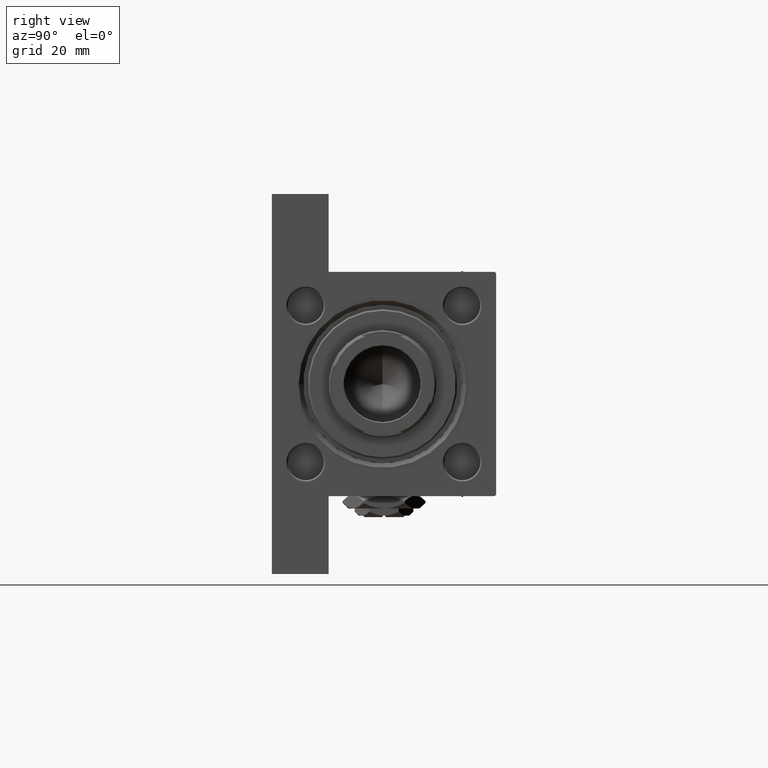
[diagram: clean part render]
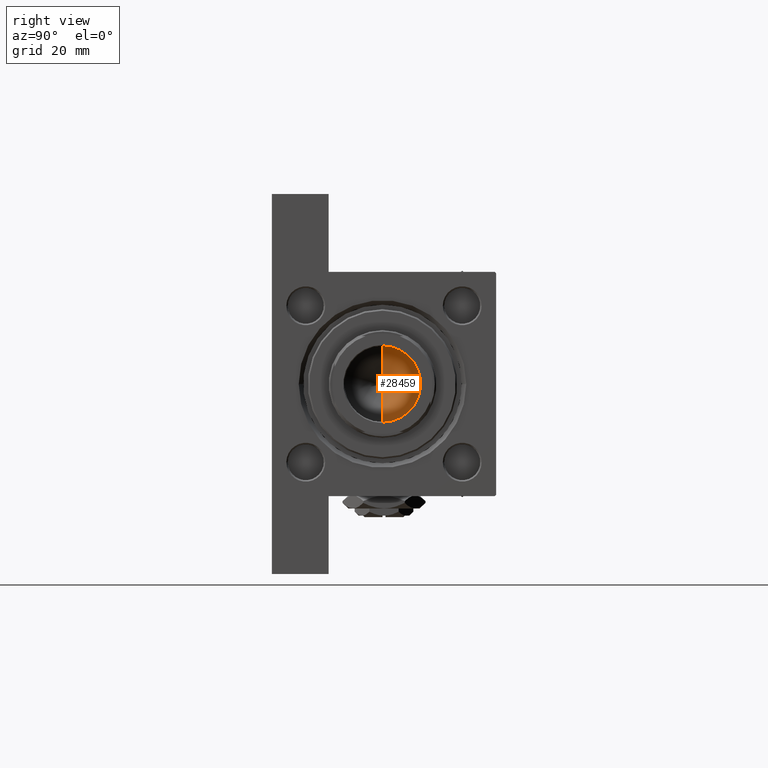
[diagram: same view with one face highlighted and labeled with its STEP entity id]
A machine part, right view. The second image highlights one B-rep face of the part: STEP entity #28459.
In plain terms, the highlighted conical surface has half-angle 59 deg.
Its self-contained STEP definition (entity closure, byte-faithful):
#1206 = DIRECTION ( 'NONE',  ( -0.000000000000000000, -0.000000000000000000, 1.000000000000000000 ) ) ;
#4295 = EDGE_LOOP ( 'NONE', ( #45368, #39631, #15118 ) ) ;
#5500 = EDGE_CURVE ( 'NONE', #44459, #21757, #23090, .T. ) ;
#7320 = DIRECTION ( 'NONE',  ( 1.000000000000000000, 0.000000000000000000, 0.000000000000000000 ) ) ;
#12103 = CIRCLE ( 'NONE', #18516, 12.74999999999998934 ) ;
#15118 = ORIENTED_EDGE ( 'NONE', *, *, #15826, .T. ) ;
#15335 = CARTESIAN_POINT ( 'NONE',  ( 0.000000000000000000, 0.000000000000000000, 97.00000000000001421 ) ) ;
#15826 = EDGE_CURVE ( 'NONE', #41891, #21757, #12103, .T. ) ;
#16492 = DIRECTION ( 'NONE',  ( 1.000000000000000000, 0.000000000000000000, 0.000000000000000000 ) ) ;
#18516 = AXIS2_PLACEMENT_3D ( 'NONE', #15335, #30671, #7320 ) ;
#18630 = CARTESIAN_POINT ( 'NONE',  ( -12.74999999999998934, 1.561424668912873928E-15, 97.00000000000001421 ) ) ;
#19768 = CARTESIAN_POINT ( 'NONE',  ( 0.000000000000000000, 0.000000000000000000, 97.00000000000001421 ) ) ;
#20635 = CARTESIAN_POINT ( 'NONE',  ( -1.410643066818227497E-14, 0.000000000000000000, 89.33902710739862130 ) ) ;
#21757 = VERTEX_POINT ( 'NONE', #30767 ) ;
#23090 = LINE ( 'NONE', #34420, #49462 ) ;
#24157 = DIRECTION ( 'NONE',  ( -0.8571673007021117785, 1.049727191138617956E-16, 0.5150380749100550437 ) ) ;
#27930 = CARTESIAN_POINT ( 'NONE',  ( -12.74999999999998934, 1.561424668912873928E-15, 97.00000000000001421 ) ) ;
#28459 = ADVANCED_FACE ( 'NONE', ( #35625 ), #47887, .F. ) ;
#30671 = DIRECTION ( 'NONE',  ( -0.000000000000000000, -0.000000000000000000, 1.000000000000000000 ) ) ;
#30767 = CARTESIAN_POINT ( 'NONE',  ( 12.74999999999998934, 0.000000000000000000, 97.00000000000001421 ) ) ;
#32578 = EDGE_CURVE ( 'NONE', #44459, #41891, #43513, .T. ) ;
#34420 = CARTESIAN_POINT ( 'NONE',  ( 12.74999999999998934, 0.000000000000000000, 97.00000000000001421 ) ) ;
#35625 = FACE_OUTER_BOUND ( 'NONE', #4295, .T. ) ;
#35858 = AXIS2_PLACEMENT_3D ( 'NONE', #19768, #1206, #16492 ) ;
#39631 = ORIENTED_EDGE ( 'NONE', *, *, #32578, .T. ) ;
#40828 = VECTOR ( 'NONE', #24157, 1000.000000000000000 ) ;
#41891 = VERTEX_POINT ( 'NONE', #18630 ) ;
#43513 = LINE ( 'NONE', #27930, #40828 ) ;
#44459 = VERTEX_POINT ( 'NONE', #20635 ) ;
#45368 = ORIENTED_EDGE ( 'NONE', *, *, #5500, .F. ) ;
#47887 = CONICAL_SURFACE ( 'NONE', #35858, 12.74999999999998934, 1.029744258676653423 ) ;
#49462 = VECTOR ( 'NONE', #49486, 1000.000000000000000 ) ;
#49486 = DIRECTION ( 'NONE',  ( 0.8571673007021117785, 0.000000000000000000, 0.5150380749100550437 ) ) ;